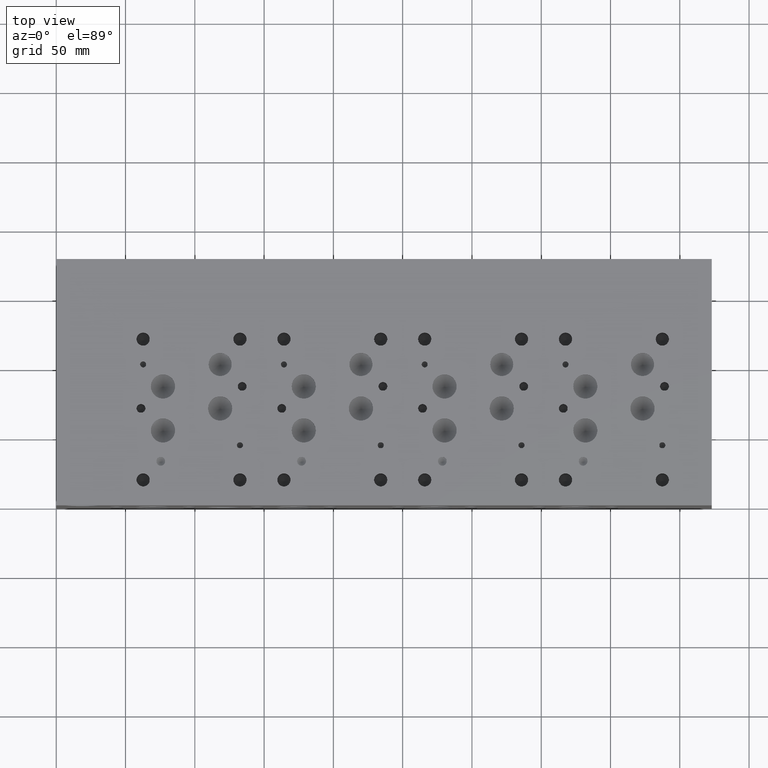
[diagram: clean part render]
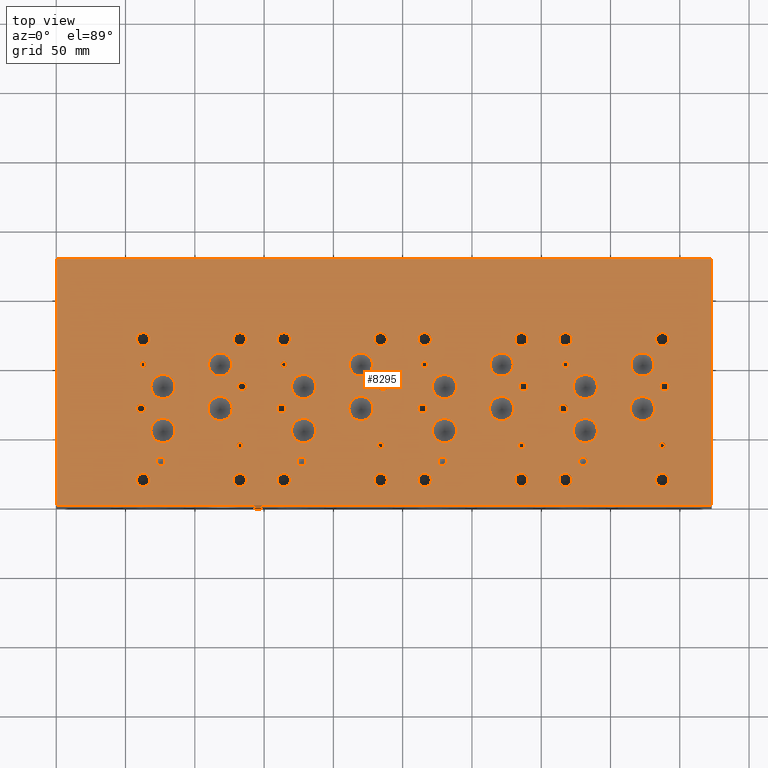
[diagram: same view with one face highlighted and labeled with its STEP entity id]
A machine part, top view. The second image highlights one B-rep face of the part: STEP entity #8295.
In plain terms, the highlighted planar face has unit normal (0, 0, 1).
Its self-contained STEP definition (entity closure, byte-faithful):
#4972=CARTESIAN_POINT('',(372.24969999999996,119.86260000000001,152.40000000000003));
#4973=VERTEX_POINT('',#4972);
#4974=CARTESIAN_POINT('',(367.48719999999997,119.86260000000001,152.40000000000003));
#4975=DIRECTION('',(0.0,0.0,-1.0));
#4976=DIRECTION('',(1.0,0.0,0.0));
#4977=AXIS2_PLACEMENT_3D('',#4974,#4975,#4976);
#4978=CIRCLE('',#4977,4.762500000000003);
#4979=EDGE_CURVE('',#4973,#4973,#4978,.T.);
#5049=CARTESIAN_POINT('',(442.09970000000004,119.86260000000001,152.40000000000003));
#5050=VERTEX_POINT('',#5049);
#5051=CARTESIAN_POINT('',(437.33720000000005,119.86260000000001,152.40000000000003));
#5052=DIRECTION('',(0.0,0.0,-1.0));
#5053=DIRECTION('',(1.0,0.0,0.0));
#5054=AXIS2_PLACEMENT_3D('',#5051,#5052,#5053);
#5055=CIRCLE('',#5054,4.762500000000003);
#5056=EDGE_CURVE('',#5050,#5050,#5055,.T.);
#5126=CARTESIAN_POINT('',(442.09970000000004,18.262599999999999,152.40000000000003));
#5127=VERTEX_POINT('',#5126);
#5128=CARTESIAN_POINT('',(437.33720000000005,18.262599999999999,152.40000000000003));
#5129=DIRECTION('',(0.0,0.0,-1.0));
#5130=DIRECTION('',(1.0,0.0,0.0));
#5131=AXIS2_PLACEMENT_3D('',#5128,#5129,#5130);
#5132=CIRCLE('',#5131,4.762500000000003);
#5133=EDGE_CURVE('',#5127,#5127,#5132,.T.);
#5203=CARTESIAN_POINT('',(372.24969999999996,18.262599999999999,152.40000000000003));
#5204=VERTEX_POINT('',#5203);
#5205=CARTESIAN_POINT('',(367.48719999999997,18.262599999999999,152.40000000000003));
#5206=DIRECTION('',(0.0,0.0,-1.0));
#5207=DIRECTION('',(1.0,0.0,0.0));
#5208=AXIS2_PLACEMENT_3D('',#5205,#5206,#5207);
#5209=CIRCLE('',#5208,4.762500000000003);
#5210=EDGE_CURVE('',#5204,#5204,#5209,.T.);
#5240=CARTESIAN_POINT('',(439.52160000000003,43.2562,152.40000000000003));
#5241=VERTEX_POINT('',#5240);
#5242=CARTESIAN_POINT('',(437.33720000000005,43.2562,152.40000000000003));
#5243=DIRECTION('',(0.0,0.0,-1.0));
#5244=DIRECTION('',(1.0,0.0,0.0));
#5245=AXIS2_PLACEMENT_3D('',#5242,#5243,#5244);
#5246=CIRCLE('',#5245,2.184400000000011);
#5247=EDGE_CURVE('',#5241,#5241,#5246,.T.);
#5277=CARTESIAN_POINT('',(369.67160000000001,101.59999999999999,152.40000000000003));
#5278=VERTEX_POINT('',#5277);
#5279=CARTESIAN_POINT('',(367.48719999999997,101.59999999999999,152.40000000000003));
#5280=DIRECTION('',(0.0,0.0,-1.0));
#5281=DIRECTION('',(1.0,0.0,0.0));
#5282=AXIS2_PLACEMENT_3D('',#5279,#5280,#5281);
#5283=CIRCLE('',#5282,2.184400000000011);
#5284=EDGE_CURVE('',#5278,#5278,#5283,.T.);
#5354=CARTESIAN_POINT('',(369.0874,69.849999999999994,152.40000000000003));
#5355=VERTEX_POINT('',#5354);
#5356=CARTESIAN_POINT('',(365.91239999999999,69.849999999999994,152.40000000000003));
#5357=DIRECTION('',(0.0,0.0,-1.0));
#5358=DIRECTION('',(1.0,0.0,0.0));
#5359=AXIS2_PLACEMENT_3D('',#5356,#5357,#5358);
#5360=CIRCLE('',#5359,3.175000000000026);
#5361=EDGE_CURVE('',#5355,#5355,#5360,.T.);
#5431=CARTESIAN_POINT('',(442.11240000000009,85.724999999999994,152.40000000000003));
#5432=VERTEX_POINT('',#5431);
#5433=CARTESIAN_POINT('',(438.93740000000008,85.724999999999994,152.40000000000003));
#5434=DIRECTION('',(0.0,0.0,-1.0));
#5435=DIRECTION('',(1.0,0.0,0.0));
#5436=AXIS2_PLACEMENT_3D('',#5433,#5434,#5435);
#5437=CIRCLE('',#5436,3.175000000000026);
#5438=EDGE_CURVE('',#5432,#5432,#5437,.T.);
#5468=CARTESIAN_POINT('',(383.36220000000003,31.750000000000004,152.40000000000003));
#5469=VERTEX_POINT('',#5468);
#5470=CARTESIAN_POINT('',(380.18720000000002,31.750000000000004,152.40000000000003));
#5471=DIRECTION('',(0.0,0.0,-1.0));
#5472=DIRECTION('',(1.0,0.0,0.0));
#5473=AXIS2_PLACEMENT_3D('',#5470,#5471,#5472);
#5474=CIRCLE('',#5473,3.175000000000026);
#5475=EDGE_CURVE('',#5469,#5469,#5474,.T.);
#5505=CARTESIAN_POINT('',(390.52499999999998,53.975000000000009,152.40000000000003));
#5506=VERTEX_POINT('',#5505);
#5507=CARTESIAN_POINT('',(381.78739999999999,53.975000000000009,152.40000000000003));
#5508=DIRECTION('',(0.0,0.0,-1.0));
#5509=DIRECTION('',(1.0,0.0,0.0));
#5510=AXIS2_PLACEMENT_3D('',#5507,#5508,#5509);
#5511=CIRCLE('',#5510,8.737599999999972);
#5512=EDGE_CURVE('',#5506,#5506,#5511,.T.);
#5542=CARTESIAN_POINT('',(390.52499999999998,85.724999999999994,152.40000000000003));
#5543=VERTEX_POINT('',#5542);
#5544=CARTESIAN_POINT('',(381.78739999999999,85.724999999999994,152.40000000000003));
#5545=DIRECTION('',(0.0,0.0,-1.0));
#5546=DIRECTION('',(1.0,0.0,0.0));
#5547=AXIS2_PLACEMENT_3D('',#5544,#5545,#5546);
#5548=CIRCLE('',#5547,8.737599999999972);
#5549=EDGE_CURVE('',#5543,#5543,#5548,.T.);
#5579=CARTESIAN_POINT('',(431.39360000000005,101.59999999999999,152.40000000000003));
#5580=VERTEX_POINT('',#5579);
#5581=CARTESIAN_POINT('',(423.06240000000003,101.59999999999999,152.40000000000003));
#5582=DIRECTION('',(0.0,0.0,-1.0));
#5583=DIRECTION('',(1.0,0.0,0.0));
#5584=AXIS2_PLACEMENT_3D('',#5581,#5582,#5583);
#5585=CIRCLE('',#5584,8.33120000000001);
#5586=EDGE_CURVE('',#5580,#5580,#5585,.T.);
#5616=CARTESIAN_POINT('',(431.80000000000001,69.849999999999994,152.40000000000003));
#5617=VERTEX_POINT('',#5616);
#5618=CARTESIAN_POINT('',(423.06240000000003,69.849999999999994,152.40000000000003));
#5619=DIRECTION('',(0.0,0.0,-1.0));
#5620=DIRECTION('',(1.0,0.0,0.0));
#5621=AXIS2_PLACEMENT_3D('',#5618,#5619,#5620);
#5622=CIRCLE('',#5621,8.737599999999972);
#5623=EDGE_CURVE('',#5617,#5617,#5622,.T.);
#5693=CARTESIAN_POINT('',(270.64970000000005,119.86260000000001,152.40000000000003));
#5694=VERTEX_POINT('',#5693);
#5695=CARTESIAN_POINT('',(265.88720000000001,119.86260000000001,152.40000000000003));
#5696=DIRECTION('',(0.0,0.0,-1.0));
#5697=DIRECTION('',(1.0,0.0,0.0));
#5698=AXIS2_PLACEMENT_3D('',#5695,#5696,#5697);
#5699=CIRCLE('',#5698,4.762500000000003);
#5700=EDGE_CURVE('',#5694,#5694,#5699,.T.);
#5770=CARTESIAN_POINT('',(340.49970000000002,119.86260000000001,152.40000000000003));
#5771=VERTEX_POINT('',#5770);
#5772=CARTESIAN_POINT('',(335.73720000000003,119.86260000000001,152.40000000000003));
#5773=DIRECTION('',(0.0,0.0,-1.0));
#5774=DIRECTION('',(1.0,0.0,0.0));
#5775=AXIS2_PLACEMENT_3D('',#5772,#5773,#5774);
#5776=CIRCLE('',#5775,4.762500000000003);
#5777=EDGE_CURVE('',#5771,#5771,#5776,.T.);
#5847=CARTESIAN_POINT('',(340.49970000000002,18.262599999999999,152.40000000000003));
#5848=VERTEX_POINT('',#5847);
#5849=CARTESIAN_POINT('',(335.73720000000003,18.262599999999999,152.40000000000003));
#5850=DIRECTION('',(0.0,0.0,-1.0));
#5851=DIRECTION('',(1.0,0.0,0.0));
#5852=AXIS2_PLACEMENT_3D('',#5849,#5850,#5851);
#5853=CIRCLE('',#5852,4.762500000000003);
#5854=EDGE_CURVE('',#5848,#5848,#5853,.T.);
#5924=CARTESIAN_POINT('',(270.64970000000005,18.262599999999999,152.40000000000003));
#5925=VERTEX_POINT('',#5924);
#5926=CARTESIAN_POINT('',(265.88720000000001,18.262599999999999,152.40000000000003));
#5927=DIRECTION('',(0.0,0.0,-1.0));
#5928=DIRECTION('',(1.0,0.0,0.0));
#5929=AXIS2_PLACEMENT_3D('',#5926,#5927,#5928);
#5930=CIRCLE('',#5929,4.762500000000003);
#5931=EDGE_CURVE('',#5925,#5925,#5930,.T.);
#5961=CARTESIAN_POINT('',(337.92160000000001,43.2562,152.40000000000003));
#5962=VERTEX_POINT('',#5961);
#5963=CARTESIAN_POINT('',(335.73720000000003,43.2562,152.40000000000003));
#5964=DIRECTION('',(0.0,0.0,-1.0));
#5965=DIRECTION('',(1.0,0.0,0.0));
#5966=AXIS2_PLACEMENT_3D('',#5963,#5964,#5965);
#5967=CIRCLE('',#5966,2.184400000000011);
#5968=EDGE_CURVE('',#5962,#5962,#5967,.T.);
#5998=CARTESIAN_POINT('',(268.07160000000005,101.59999999999999,152.40000000000003));
#5999=VERTEX_POINT('',#5998);
#6000=CARTESIAN_POINT('',(265.88720000000001,101.59999999999999,152.40000000000003));
#6001=DIRECTION('',(0.0,0.0,-1.0));
#6002=DIRECTION('',(1.0,0.0,0.0));
#6003=AXIS2_PLACEMENT_3D('',#6000,#6001,#6002);
#6004=CIRCLE('',#6003,2.184400000000011);
#6005=EDGE_CURVE('',#5999,#5999,#6004,.T.);
#6075=CARTESIAN_POINT('',(267.48740000000004,69.849999999999994,152.40000000000003));
#6076=VERTEX_POINT('',#6075);
#6077=CARTESIAN_POINT('',(264.31240000000003,69.849999999999994,152.40000000000003));
#6078=DIRECTION('',(0.0,0.0,-1.0));
#6079=DIRECTION('',(1.0,0.0,0.0));
#6080=AXIS2_PLACEMENT_3D('',#6077,#6078,#6079);
#6081=CIRCLE('',#6080,3.17499999999999);
#6082=EDGE_CURVE('',#6076,#6076,#6081,.T.);
#6152=CARTESIAN_POINT('',(340.51240000000007,85.724999999999994,152.40000000000003));
#6153=VERTEX_POINT('',#6152);
#6154=CARTESIAN_POINT('',(337.33740000000006,85.724999999999994,152.40000000000003));
#6155=DIRECTION('',(0.0,0.0,-1.0));
#6156=DIRECTION('',(1.0,0.0,0.0));
#6157=AXIS2_PLACEMENT_3D('',#6154,#6155,#6156);
#6158=CIRCLE('',#6157,3.175000000000026);
#6159=EDGE_CURVE('',#6153,#6153,#6158,.T.);
#6189=CARTESIAN_POINT('',(281.76220000000001,31.750000000000004,152.40000000000003));
#6190=VERTEX_POINT('',#6189);
#6191=CARTESIAN_POINT('',(278.5872,31.750000000000004,152.40000000000003));
#6192=DIRECTION('',(0.0,0.0,-1.0));
#6193=DIRECTION('',(1.0,0.0,0.0));
#6194=AXIS2_PLACEMENT_3D('',#6191,#6192,#6193);
#6195=CIRCLE('',#6194,3.17499999999999);
#6196=EDGE_CURVE('',#6190,#6190,#6195,.T.);
#6226=CARTESIAN_POINT('',(288.92500000000007,53.975000000000009,152.40000000000003));
#6227=VERTEX_POINT('',#6226);
#6228=CARTESIAN_POINT('',(280.18740000000003,53.975000000000009,152.40000000000003));
#6229=DIRECTION('',(0.0,0.0,-1.0));
#6230=DIRECTION('',(1.0,0.0,0.0));
#6231=AXIS2_PLACEMENT_3D('',#6228,#6229,#6230);
#6232=CIRCLE('',#6231,8.737600000000008);
#6233=EDGE_CURVE('',#6227,#6227,#6232,.T.);
#6263=CARTESIAN_POINT('',(288.92500000000007,85.724999999999994,152.40000000000003));
#6264=VERTEX_POINT('',#6263);
#6265=CARTESIAN_POINT('',(280.18740000000003,85.724999999999994,152.40000000000003));
#6266=DIRECTION('',(0.0,0.0,-1.0));
#6267=DIRECTION('',(1.0,0.0,0.0));
#6268=AXIS2_PLACEMENT_3D('',#6265,#6266,#6267);
#6269=CIRCLE('',#6268,8.737600000000008);
#6270=EDGE_CURVE('',#6264,#6264,#6269,.T.);
#6300=CARTESIAN_POINT('',(329.79359999999997,101.59999999999999,152.40000000000003));
#6301=VERTEX_POINT('',#6300);
#6302=CARTESIAN_POINT('',(321.4624,101.59999999999999,152.40000000000003));
#6303=DIRECTION('',(0.0,0.0,-1.0));
#6304=DIRECTION('',(1.0,0.0,0.0));
#6305=AXIS2_PLACEMENT_3D('',#6302,#6303,#6304);
#6306=CIRCLE('',#6305,8.33120000000001);
#6307=EDGE_CURVE('',#6301,#6301,#6306,.T.);
#6337=CARTESIAN_POINT('',(330.19999999999993,69.849999999999994,152.40000000000003));
#6338=VERTEX_POINT('',#6337);
#6339=CARTESIAN_POINT('',(321.4624,69.849999999999994,152.40000000000003));
#6340=DIRECTION('',(0.0,0.0,-1.0));
#6341=DIRECTION('',(1.0,0.0,0.0));
#6342=AXIS2_PLACEMENT_3D('',#6339,#6340,#6341);
#6343=CIRCLE('',#6342,8.737599999999972);
#6344=EDGE_CURVE('',#6338,#6338,#6343,.T.);
#6414=CARTESIAN_POINT('',(169.04970000000003,119.86260000000001,152.40000000000003));
#6415=VERTEX_POINT('',#6414);
#6416=CARTESIAN_POINT('',(164.28720000000001,119.86260000000001,152.40000000000003));
#6417=DIRECTION('',(0.0,0.0,-1.0));
#6418=DIRECTION('',(1.0,0.0,0.0));
#6419=AXIS2_PLACEMENT_3D('',#6416,#6417,#6418);
#6420=CIRCLE('',#6419,4.762500000000003);
#6421=EDGE_CURVE('',#6415,#6415,#6420,.T.);
#6491=CARTESIAN_POINT('',(238.89970000000002,119.86260000000001,152.40000000000003));
#6492=VERTEX_POINT('',#6491);
#6493=CARTESIAN_POINT('',(234.13720000000001,119.86260000000001,152.40000000000003));
#6494=DIRECTION('',(0.0,0.0,-1.0));
#6495=DIRECTION('',(1.0,0.0,0.0));
#6496=AXIS2_PLACEMENT_3D('',#6493,#6494,#6495);
#6497=CIRCLE('',#6496,4.762500000000003);
#6498=EDGE_CURVE('',#6492,#6492,#6497,.T.);
#6568=CARTESIAN_POINT('',(238.89970000000002,18.262599999999999,152.40000000000003));
#6569=VERTEX_POINT('',#6568);
#6570=CARTESIAN_POINT('',(234.13720000000001,18.262599999999999,152.40000000000003));
#6571=DIRECTION('',(0.0,0.0,-1.0));
#6572=DIRECTION('',(1.0,0.0,0.0));
#6573=AXIS2_PLACEMENT_3D('',#6570,#6571,#6572);
#6574=CIRCLE('',#6573,4.762500000000003);
#6575=EDGE_CURVE('',#6569,#6569,#6574,.T.);
#6645=CARTESIAN_POINT('',(169.04970000000003,18.262599999999999,152.40000000000003));
#6646=VERTEX_POINT('',#6645);
#6647=CARTESIAN_POINT('',(164.28720000000001,18.262599999999999,152.40000000000003));
#6648=DIRECTION('',(0.0,0.0,-1.0));
#6649=DIRECTION('',(1.0,0.0,0.0));
#6650=AXIS2_PLACEMENT_3D('',#6647,#6648,#6649);
#6651=CIRCLE('',#6650,4.762500000000003);
#6652=EDGE_CURVE('',#6646,#6646,#6651,.T.);
#6682=CARTESIAN_POINT('',(236.32160000000002,43.2562,152.40000000000003));
#6683=VERTEX_POINT('',#6682);
#6684=CARTESIAN_POINT('',(234.13720000000001,43.2562,152.40000000000003));
#6685=DIRECTION('',(0.0,0.0,-1.0));
#6686=DIRECTION('',(1.0,0.0,0.0));
#6687=AXIS2_PLACEMENT_3D('',#6684,#6685,#6686);
#6688=CIRCLE('',#6687,2.184400000000011);
#6689=EDGE_CURVE('',#6683,#6683,#6688,.T.);
#6719=CARTESIAN_POINT('',(166.47160000000002,101.59999999999999,152.40000000000003));
#6720=VERTEX_POINT('',#6719);
#6721=CARTESIAN_POINT('',(164.28720000000001,101.59999999999999,152.40000000000003));
#6722=DIRECTION('',(0.0,0.0,-1.0));
#6723=DIRECTION('',(1.0,0.0,0.0));
#6724=AXIS2_PLACEMENT_3D('',#6721,#6722,#6723);
#6725=CIRCLE('',#6724,2.184400000000011);
#6726=EDGE_CURVE('',#6720,#6720,#6725,.T.);
#6796=CARTESIAN_POINT('',(165.88740000000001,69.849999999999994,152.40000000000003));
#6797=VERTEX_POINT('',#6796);
#6798=CARTESIAN_POINT('',(162.71240000000003,69.849999999999994,152.40000000000003));
#6799=DIRECTION('',(0.0,0.0,-1.0));
#6800=DIRECTION('',(1.0,0.0,0.0));
#6801=AXIS2_PLACEMENT_3D('',#6798,#6799,#6800);
#6802=CIRCLE('',#6801,3.17499999999999);
#6803=EDGE_CURVE('',#6797,#6797,#6802,.T.);
#6873=CARTESIAN_POINT('',(238.91239999999999,85.724999999999994,152.40000000000003));
#6874=VERTEX_POINT('',#6873);
#6875=CARTESIAN_POINT('',(235.73740000000001,85.724999999999994,152.40000000000003));
#6876=DIRECTION('',(0.0,0.0,-1.0));
#6877=DIRECTION('',(1.0,0.0,0.0));
#6878=AXIS2_PLACEMENT_3D('',#6875,#6876,#6877);
#6879=CIRCLE('',#6878,3.17499999999999);
#6880=EDGE_CURVE('',#6874,#6874,#6879,.T.);
#6910=CARTESIAN_POINT('',(180.16220000000001,31.750000000000004,152.40000000000003));
#6911=VERTEX_POINT('',#6910);
#6912=CARTESIAN_POINT('',(176.98720000000003,31.750000000000004,152.40000000000003));
#6913=DIRECTION('',(0.0,0.0,-1.0));
#6914=DIRECTION('',(1.0,0.0,0.0));
#6915=AXIS2_PLACEMENT_3D('',#6912,#6913,#6914);
#6916=CIRCLE('',#6915,3.17499999999999);
#6917=EDGE_CURVE('',#6911,#6911,#6916,.T.);
#6947=CARTESIAN_POINT('',(187.32500000000002,53.975000000000009,152.40000000000003));
#6948=VERTEX_POINT('',#6947);
#6949=CARTESIAN_POINT('',(178.5874,53.975000000000009,152.40000000000003));
#6950=DIRECTION('',(0.0,0.0,-1.0));
#6951=DIRECTION('',(1.0,0.0,0.0));
#6952=AXIS2_PLACEMENT_3D('',#6949,#6950,#6951);
#6953=CIRCLE('',#6952,8.737600000000008);
#6954=EDGE_CURVE('',#6948,#6948,#6953,.T.);
#6984=CARTESIAN_POINT('',(187.32500000000002,85.724999999999994,152.40000000000003));
#6985=VERTEX_POINT('',#6984);
#6986=CARTESIAN_POINT('',(178.5874,85.724999999999994,152.40000000000003));
#6987=DIRECTION('',(0.0,0.0,-1.0));
#6988=DIRECTION('',(1.0,0.0,0.0));
#6989=AXIS2_PLACEMENT_3D('',#6986,#6987,#6988);
#6990=CIRCLE('',#6989,8.737600000000008);
#6991=EDGE_CURVE('',#6985,#6985,#6990,.T.);
#7021=CARTESIAN_POINT('',(228.19360000000003,101.59999999999999,152.40000000000003));
#7022=VERTEX_POINT('',#7021);
#7023=CARTESIAN_POINT('',(219.86240000000004,101.59999999999999,152.40000000000003));
#7024=DIRECTION('',(0.0,0.0,-1.0));
#7025=DIRECTION('',(1.0,0.0,0.0));
#7026=AXIS2_PLACEMENT_3D('',#7023,#7024,#7025);
#7027=CIRCLE('',#7026,8.33120000000001);
#7028=EDGE_CURVE('',#7022,#7022,#7027,.T.);
#7058=CARTESIAN_POINT('',(228.60000000000002,69.849999999999994,152.40000000000003));
#7059=VERTEX_POINT('',#7058);
#7060=CARTESIAN_POINT('',(219.86240000000004,69.849999999999994,152.40000000000003));
#7061=DIRECTION('',(0.0,0.0,-1.0));
#7062=DIRECTION('',(1.0,0.0,0.0));
#7063=AXIS2_PLACEMENT_3D('',#7060,#7061,#7062);
#7064=CIRCLE('',#7063,8.737600000000008);
#7065=EDGE_CURVE('',#7059,#7059,#7064,.T.);
#7135=CARTESIAN_POINT('',(67.449700000000007,119.86260000000001,152.40000000000003));
#7136=VERTEX_POINT('',#7135);
#7137=CARTESIAN_POINT('',(62.687200000000004,119.86260000000001,152.40000000000003));
#7138=DIRECTION('',(0.0,0.0,-1.0));
#7139=DIRECTION('',(1.0,0.0,0.0));
#7140=AXIS2_PLACEMENT_3D('',#7137,#7138,#7139);
#7141=CIRCLE('',#7140,4.762500000000003);
#7142=EDGE_CURVE('',#7136,#7136,#7141,.T.);
#7212=CARTESIAN_POINT('',(137.29970000000003,119.86260000000001,152.40000000000003));
#7213=VERTEX_POINT('',#7212);
#7214=CARTESIAN_POINT('',(132.53720000000001,119.86260000000001,152.40000000000003));
#7215=DIRECTION('',(0.0,0.0,-1.0));
#7216=DIRECTION('',(1.0,0.0,0.0));
#7217=AXIS2_PLACEMENT_3D('',#7214,#7215,#7216);
#7218=CIRCLE('',#7217,4.762500000000003);
#7219=EDGE_CURVE('',#7213,#7213,#7218,.T.);
#7289=CARTESIAN_POINT('',(137.29970000000003,18.262599999999999,152.40000000000003));
#7290=VERTEX_POINT('',#7289);
#7291=CARTESIAN_POINT('',(132.53720000000001,18.262599999999999,152.40000000000003));
#7292=DIRECTION('',(0.0,0.0,-1.0));
#7293=DIRECTION('',(1.0,0.0,0.0));
#7294=AXIS2_PLACEMENT_3D('',#7291,#7292,#7293);
#7295=CIRCLE('',#7294,4.762500000000003);
#7296=EDGE_CURVE('',#7290,#7290,#7295,.T.);
#7366=CARTESIAN_POINT('',(67.449700000000007,18.262599999999999,152.40000000000003));
#7367=VERTEX_POINT('',#7366);
#7368=CARTESIAN_POINT('',(62.687200000000004,18.262599999999999,152.40000000000003));
#7369=DIRECTION('',(0.0,0.0,-1.0));
#7370=DIRECTION('',(1.0,0.0,0.0));
#7371=AXIS2_PLACEMENT_3D('',#7368,#7369,#7370);
#7372=CIRCLE('',#7371,4.762500000000003);
#7373=EDGE_CURVE('',#7367,#7367,#7372,.T.);
#7403=CARTESIAN_POINT('',(134.7216,43.2562,152.40000000000003));
#7404=VERTEX_POINT('',#7403);
#7405=CARTESIAN_POINT('',(132.53720000000001,43.2562,152.40000000000003));
#7406=DIRECTION('',(0.0,0.0,-1.0));
#7407=DIRECTION('',(1.0,0.0,0.0));
#7408=AXIS2_PLACEMENT_3D('',#7405,#7406,#7407);
#7409=CIRCLE('',#7408,2.184399999999993);
#7410=EDGE_CURVE('',#7404,#7404,#7409,.T.);
#7440=CARTESIAN_POINT('',(64.871600000000001,101.59999999999999,152.40000000000003));
#7441=VERTEX_POINT('',#7440);
#7442=CARTESIAN_POINT('',(62.687200000000004,101.59999999999999,152.40000000000003));
#7443=DIRECTION('',(0.0,0.0,-1.0));
#7444=DIRECTION('',(1.0,0.0,0.0));
#7445=AXIS2_PLACEMENT_3D('',#7442,#7443,#7444);
#7446=CIRCLE('',#7445,2.184400000000002);
#7447=EDGE_CURVE('',#7441,#7441,#7446,.T.);
#7517=CARTESIAN_POINT('',(64.287400000000005,69.849999999999994,152.40000000000003));
#7518=VERTEX_POINT('',#7517);
#7519=CARTESIAN_POINT('',(61.112400000000008,69.849999999999994,152.40000000000003));
#7520=DIRECTION('',(0.0,0.0,-1.0));
#7521=DIRECTION('',(1.0,0.0,0.0));
#7522=AXIS2_PLACEMENT_3D('',#7519,#7520,#7521);
#7523=CIRCLE('',#7522,3.174999999999999);
#7524=EDGE_CURVE('',#7518,#7518,#7523,.T.);
#7594=CARTESIAN_POINT('',(137.31240000000003,85.724999999999994,152.40000000000003));
#7595=VERTEX_POINT('',#7594);
#7596=CARTESIAN_POINT('',(134.13740000000001,85.724999999999994,152.40000000000003));
#7597=DIRECTION('',(0.0,0.0,-1.0));
#7598=DIRECTION('',(1.0,0.0,0.0));
#7599=AXIS2_PLACEMENT_3D('',#7596,#7597,#7598);
#7600=CIRCLE('',#7599,3.175000000000008);
#7601=EDGE_CURVE('',#7595,#7595,#7600,.T.);
#7631=CARTESIAN_POINT('',(78.562200000000018,31.750000000000004,152.40000000000003));
#7632=VERTEX_POINT('',#7631);
#7633=CARTESIAN_POINT('',(75.387200000000007,31.750000000000004,152.40000000000003));
#7634=DIRECTION('',(0.0,0.0,-1.0));
#7635=DIRECTION('',(1.0,0.0,0.0));
#7636=AXIS2_PLACEMENT_3D('',#7633,#7634,#7635);
#7637=CIRCLE('',#7636,3.174999999999999);
#7638=EDGE_CURVE('',#7632,#7632,#7637,.T.);
#7668=CARTESIAN_POINT('',(85.724999999999994,53.975000000000009,152.40000000000003));
#7669=VERTEX_POINT('',#7668);
#7670=CARTESIAN_POINT('',(76.987399999999994,53.975000000000009,152.40000000000003));
#7671=DIRECTION('',(0.0,0.0,-1.0));
#7672=DIRECTION('',(1.0,0.0,0.0));
#7673=AXIS2_PLACEMENT_3D('',#7670,#7671,#7672);
#7674=CIRCLE('',#7673,8.737599999999999);
#7675=EDGE_CURVE('',#7669,#7669,#7674,.T.);
#7705=CARTESIAN_POINT('',(85.724999999999994,85.724999999999994,152.40000000000003));
#7706=VERTEX_POINT('',#7705);
#7707=CARTESIAN_POINT('',(76.987399999999994,85.724999999999994,152.40000000000003));
#7708=DIRECTION('',(0.0,0.0,-1.0));
#7709=DIRECTION('',(1.0,0.0,0.0));
#7710=AXIS2_PLACEMENT_3D('',#7707,#7708,#7709);
#7711=CIRCLE('',#7710,8.737599999999999);
#7712=EDGE_CURVE('',#7706,#7706,#7711,.T.);
#7742=CARTESIAN_POINT('',(126.5936,101.59999999999999,152.40000000000003));
#7743=VERTEX_POINT('',#7742);
#7744=CARTESIAN_POINT('',(118.2624,101.59999999999999,152.40000000000003));
#7745=DIRECTION('',(0.0,0.0,-1.0));
#7746=DIRECTION('',(1.0,0.0,0.0));
#7747=AXIS2_PLACEMENT_3D('',#7744,#7745,#7746);
#7748=CIRCLE('',#7747,8.331199999999992);
#7749=EDGE_CURVE('',#7743,#7743,#7748,.T.);
#7779=CARTESIAN_POINT('',(127.00000000000001,69.849999999999994,152.40000000000003));
#7780=VERTEX_POINT('',#7779);
#7781=CARTESIAN_POINT('',(118.2624,69.849999999999994,152.40000000000003));
#7782=DIRECTION('',(0.0,0.0,-1.0));
#7783=DIRECTION('',(1.0,0.0,0.0));
#7784=AXIS2_PLACEMENT_3D('',#7781,#7782,#7783);
#7785=CIRCLE('',#7784,8.737600000000008);
#7786=EDGE_CURVE('',#7780,#7780,#7785,.T.);
#7799=CARTESIAN_POINT('',(0.0,0.0,152.40000000000003));
#7800=VERTEX_POINT('',#7799);
#7801=CARTESIAN_POINT('',(0.0,177.80000000000001,152.40000000000003));
#7802=VERTEX_POINT('',#7801);
#7803=CARTESIAN_POINT('',(0.0,0.0,152.40000000000003));
#7804=DIRECTION('',(0.0,1.0,0.0));
#7805=VECTOR('',#7804,177.80000000000001);
#7806=LINE('',#7803,#7805);
#7807=EDGE_CURVE('',#7800,#7802,#7806,.T.);
#7875=CARTESIAN_POINT('',(473.07500000000005,177.80000000000001,152.40000000000003));
#7876=VERTEX_POINT('',#7875);
#7877=CARTESIAN_POINT('',(0.0,177.80000000000001,152.40000000000003));
#7878=DIRECTION('',(1.0,0.0,0.0));
#7879=VECTOR('',#7878,473.07500000000005);
#7880=LINE('',#7877,#7879);
#7881=EDGE_CURVE('',#7802,#7876,#7880,.T.);
#7906=CARTESIAN_POINT('',(473.07500000000005,0.0,152.40000000000003));
#7907=VERTEX_POINT('',#7906);
#7908=CARTESIAN_POINT('',(473.07500000000005,177.80000000000001,152.40000000000003));
#7909=DIRECTION('',(0.0,-1.0,0.0));
#7910=VECTOR('',#7909,177.80000000000001);
#7911=LINE('',#7908,#7910);
#7912=EDGE_CURVE('',#7876,#7907,#7911,.T.);
#7973=CARTESIAN_POINT('',(473.07500000000005,0.0,152.40000000000003));
#7974=DIRECTION('',(-1.0,0.0,0.0));
#7975=VECTOR('',#7974,473.07500000000005);
#7976=LINE('',#7973,#7975);
#7977=EDGE_CURVE('',#7907,#7800,#7976,.T.);
#8128=CARTESIAN_POINT('',(236.53750000000002,88.900000000000006,152.40000000000003));
#8129=DIRECTION('',(0.0,0.0,1.0));
#8130=DIRECTION('',(1.0,0.0,0.0));
#8131=AXIS2_PLACEMENT_3D('',#8128,#8129,#8130);
#8132=PLANE('',#8131);
#8133=ORIENTED_EDGE('',*,*,#7807,.F.);
#8134=ORIENTED_EDGE('',*,*,#7977,.F.);
#8135=ORIENTED_EDGE('',*,*,#7912,.F.);
#8136=ORIENTED_EDGE('',*,*,#7881,.F.);
#8137=EDGE_LOOP('',(#8133,#8134,#8135,#8136));
#8138=FACE_OUTER_BOUND('',#8137,.T.);
#8139=ORIENTED_EDGE('',*,*,#4979,.T.);
#8140=EDGE_LOOP('',(#8139));
#8141=FACE_BOUND('',#8140,.T.);
#8142=ORIENTED_EDGE('',*,*,#5056,.T.);
#8143=EDGE_LOOP('',(#8142));
#8144=FACE_BOUND('',#8143,.T.);
#8145=ORIENTED_EDGE('',*,*,#5133,.T.);
#8146=EDGE_LOOP('',(#8145));
#8147=FACE_BOUND('',#8146,.T.);
#8148=ORIENTED_EDGE('',*,*,#5210,.T.);
#8149=EDGE_LOOP('',(#8148));
#8150=FACE_BOUND('',#8149,.T.);
#8151=ORIENTED_EDGE('',*,*,#5247,.T.);
#8152=EDGE_LOOP('',(#8151));
#8153=FACE_BOUND('',#8152,.T.);
#8154=ORIENTED_EDGE('',*,*,#5284,.T.);
#8155=EDGE_LOOP('',(#8154));
#8156=FACE_BOUND('',#8155,.T.);
#8157=ORIENTED_EDGE('',*,*,#5361,.T.);
#8158=EDGE_LOOP('',(#8157));
#8159=FACE_BOUND('',#8158,.T.);
#8160=ORIENTED_EDGE('',*,*,#5438,.T.);
#8161=EDGE_LOOP('',(#8160));
#8162=FACE_BOUND('',#8161,.T.);
#8163=ORIENTED_EDGE('',*,*,#5475,.T.);
#8164=EDGE_LOOP('',(#8163));
#8165=FACE_BOUND('',#8164,.T.);
#8166=ORIENTED_EDGE('',*,*,#5512,.T.);
#8167=EDGE_LOOP('',(#8166));
#8168=FACE_BOUND('',#8167,.T.);
#8169=ORIENTED_EDGE('',*,*,#5549,.T.);
#8170=EDGE_LOOP('',(#8169));
#8171=FACE_BOUND('',#8170,.T.);
#8172=ORIENTED_EDGE('',*,*,#5586,.T.);
#8173=EDGE_LOOP('',(#8172));
#8174=FACE_BOUND('',#8173,.T.);
#8175=ORIENTED_EDGE('',*,*,#5623,.T.);
#8176=EDGE_LOOP('',(#8175));
#8177=FACE_BOUND('',#8176,.T.);
#8178=ORIENTED_EDGE('',*,*,#5700,.T.);
#8179=EDGE_LOOP('',(#8178));
#8180=FACE_BOUND('',#8179,.T.);
#8181=ORIENTED_EDGE('',*,*,#5777,.T.);
#8182=EDGE_LOOP('',(#8181));
#8183=FACE_BOUND('',#8182,.T.);
#8184=ORIENTED_EDGE('',*,*,#5854,.T.);
#8185=EDGE_LOOP('',(#8184));
#8186=FACE_BOUND('',#8185,.T.);
#8187=ORIENTED_EDGE('',*,*,#5931,.T.);
#8188=EDGE_LOOP('',(#8187));
#8189=FACE_BOUND('',#8188,.T.);
#8190=ORIENTED_EDGE('',*,*,#5968,.T.);
#8191=EDGE_LOOP('',(#8190));
#8192=FACE_BOUND('',#8191,.T.);
#8193=ORIENTED_EDGE('',*,*,#6005,.T.);
#8194=EDGE_LOOP('',(#8193));
#8195=FACE_BOUND('',#8194,.T.);
#8196=ORIENTED_EDGE('',*,*,#6082,.T.);
#8197=EDGE_LOOP('',(#8196));
#8198=FACE_BOUND('',#8197,.T.);
#8199=ORIENTED_EDGE('',*,*,#6159,.T.);
#8200=EDGE_LOOP('',(#8199));
#8201=FACE_BOUND('',#8200,.T.);
#8202=ORIENTED_EDGE('',*,*,#6196,.T.);
#8203=EDGE_LOOP('',(#8202));
#8204=FACE_BOUND('',#8203,.T.);
#8205=ORIENTED_EDGE('',*,*,#6233,.T.);
#8206=EDGE_LOOP('',(#8205));
#8207=FACE_BOUND('',#8206,.T.);
#8208=ORIENTED_EDGE('',*,*,#6270,.T.);
#8209=EDGE_LOOP('',(#8208));
#8210=FACE_BOUND('',#8209,.T.);
#8211=ORIENTED_EDGE('',*,*,#6307,.T.);
#8212=EDGE_LOOP('',(#8211));
#8213=FACE_BOUND('',#8212,.T.);
#8214=ORIENTED_EDGE('',*,*,#6344,.T.);
#8215=EDGE_LOOP('',(#8214));
#8216=FACE_BOUND('',#8215,.T.);
#8217=ORIENTED_EDGE('',*,*,#6421,.T.);
#8218=EDGE_LOOP('',(#8217));
#8219=FACE_BOUND('',#8218,.T.);
#8220=ORIENTED_EDGE('',*,*,#6498,.T.);
#8221=EDGE_LOOP('',(#8220));
#8222=FACE_BOUND('',#8221,.T.);
#8223=ORIENTED_EDGE('',*,*,#6575,.T.);
#8224=EDGE_LOOP('',(#8223));
#8225=FACE_BOUND('',#8224,.T.);
#8226=ORIENTED_EDGE('',*,*,#6652,.T.);
#8227=EDGE_LOOP('',(#8226));
#8228=FACE_BOUND('',#8227,.T.);
#8229=ORIENTED_EDGE('',*,*,#6689,.T.);
#8230=EDGE_LOOP('',(#8229));
#8231=FACE_BOUND('',#8230,.T.);
#8232=ORIENTED_EDGE('',*,*,#6726,.T.);
#8233=EDGE_LOOP('',(#8232));
#8234=FACE_BOUND('',#8233,.T.);
#8235=ORIENTED_EDGE('',*,*,#6803,.T.);
#8236=EDGE_LOOP('',(#8235));
#8237=FACE_BOUND('',#8236,.T.);
#8238=ORIENTED_EDGE('',*,*,#6880,.T.);
#8239=EDGE_LOOP('',(#8238));
#8240=FACE_BOUND('',#8239,.T.);
#8241=ORIENTED_EDGE('',*,*,#6917,.T.);
#8242=EDGE_LOOP('',(#8241));
#8243=FACE_BOUND('',#8242,.T.);
#8244=ORIENTED_EDGE('',*,*,#6954,.T.);
#8245=EDGE_LOOP('',(#8244));
#8246=FACE_BOUND('',#8245,.T.);
#8247=ORIENTED_EDGE('',*,*,#6991,.T.);
#8248=EDGE_LOOP('',(#8247));
#8249=FACE_BOUND('',#8248,.T.);
#8250=ORIENTED_EDGE('',*,*,#7028,.T.);
#8251=EDGE_LOOP('',(#8250));
#8252=FACE_BOUND('',#8251,.T.);
#8253=ORIENTED_EDGE('',*,*,#7065,.T.);
#8254=EDGE_LOOP('',(#8253));
#8255=FACE_BOUND('',#8254,.T.);
#8256=ORIENTED_EDGE('',*,*,#7142,.T.);
#8257=EDGE_LOOP('',(#8256));
#8258=FACE_BOUND('',#8257,.T.);
#8259=ORIENTED_EDGE('',*,*,#7219,.T.);
#8260=EDGE_LOOP('',(#8259));
#8261=FACE_BOUND('',#8260,.T.);
#8262=ORIENTED_EDGE('',*,*,#7296,.T.);
#8263=EDGE_LOOP('',(#8262));
#8264=FACE_BOUND('',#8263,.T.);
#8265=ORIENTED_EDGE('',*,*,#7373,.T.);
#8266=EDGE_LOOP('',(#8265));
#8267=FACE_BOUND('',#8266,.T.);
#8268=ORIENTED_EDGE('',*,*,#7410,.T.);
#8269=EDGE_LOOP('',(#8268));
#8270=FACE_BOUND('',#8269,.T.);
#8271=ORIENTED_EDGE('',*,*,#7447,.T.);
#8272=EDGE_LOOP('',(#8271));
#8273=FACE_BOUND('',#8272,.T.);
#8274=ORIENTED_EDGE('',*,*,#7524,.T.);
#8275=EDGE_LOOP('',(#8274));
#8276=FACE_BOUND('',#8275,.T.);
#8277=ORIENTED_EDGE('',*,*,#7601,.T.);
#8278=EDGE_LOOP('',(#8277));
#8279=FACE_BOUND('',#8278,.T.);
#8280=ORIENTED_EDGE('',*,*,#7638,.T.);
#8281=EDGE_LOOP('',(#8280));
#8282=FACE_BOUND('',#8281,.T.);
#8283=ORIENTED_EDGE('',*,*,#7675,.T.);
#8284=EDGE_LOOP('',(#8283));
#8285=FACE_BOUND('',#8284,.T.);
#8286=ORIENTED_EDGE('',*,*,#7712,.T.);
#8287=EDGE_LOOP('',(#8286));
#8288=FACE_BOUND('',#8287,.T.);
#8289=ORIENTED_EDGE('',*,*,#7749,.T.);
#8290=EDGE_LOOP('',(#8289));
#8291=FACE_BOUND('',#8290,.T.);
#8292=ORIENTED_EDGE('',*,*,#7786,.T.);
#8293=EDGE_LOOP('',(#8292));
#8294=FACE_BOUND('',#8293,.T.);
#8295=ADVANCED_FACE('',(#8138,#8141,#8144,#8147,#8150,#8153,#8156,#8159,#8162,#8165,#8168,#8171,#8174,#8177,#8180,#8183,#8186,#8189,#8192,#8195,#8198,#8201,#8204,#8207,#8210,#8213,#8216,#8219,#8222,#8225,#8228,#8231,#8234,#8237,#8240,#8243,#8246,#8249,#8252,#8255,#8258,#8261,#8264,#8267,#8270,#8273,#8276,#8279,#8282,#8285,#8288,#8291,#8294),#8132,.T.);